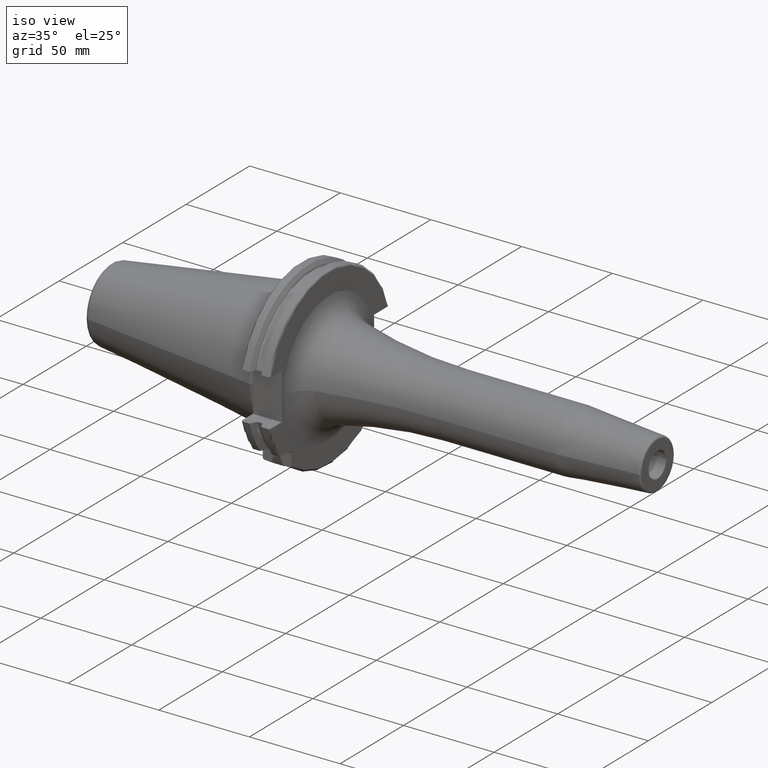
[diagram: clean part render]
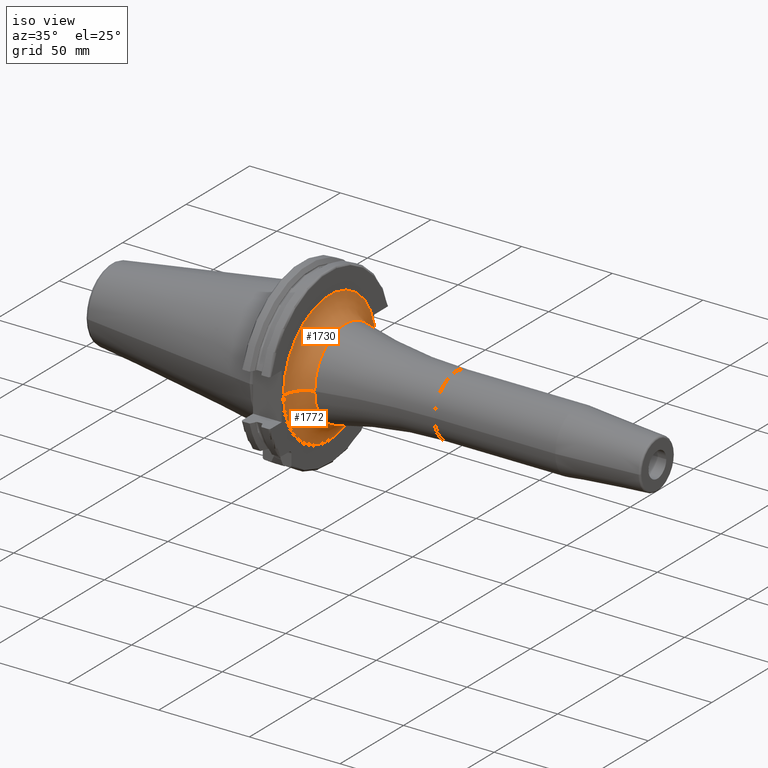
[diagram: same view with one multi-face feature highlighted, each face labeled with its STEP entity id]
A machine part, iso view. The highlighted faces form ONE feature: a constant-radius fillet chain: 2 tangent blend faces with common blend radius 12 mm. The faces share edges in the B-rep.
Their STEP definitions:
[1] entity #1772 (Torus):
#131=CARTESIAN_POINT('',(1.905E1,0.E0,0.E0));
#132=DIRECTION('',(1.E0,0.E0,0.E0));
#133=DIRECTION('',(0.E0,-1.E0,0.E0));
#134=AXIS2_PLACEMENT_3D('',#131,#132,#133);
#172=CARTESIAN_POINT('',(1.908197216969E1,3.53E1,-4.514151702614E-4));
#179=CARTESIAN_POINT('',(3.105E1,3.617539125699E1,-4.626096431729E-4));
#180=DIRECTION('',(0.E0,1.278796516253E-5,9.999999999182E-1));
#181=DIRECTION('',(-9.973356525258E-1,-7.294927141550E-2,9.328727415692E-7));
#182=AXIS2_PLACEMENT_3D('',#179,#180,#181);
#189=CARTESIAN_POINT('',(2.812563025210E1,0.E0,0.E0));
#190=DIRECTION('',(1.E0,0.E0,0.E0));
#191=DIRECTION('',(0.E0,-1.E0,0.E0));
#192=AXIS2_PLACEMENT_3D('',#189,#190,#191);
#204=CARTESIAN_POINT('',(3.105E1,-3.617539125994E1,7.554457059911E-12));
#205=DIRECTION('',(0.E0,-2.088277467616E-13,-1.E0));
#206=DIRECTION('',(-1.E0,2.664535259100E-14,0.E0));
#207=AXIS2_PLACEMENT_3D('',#204,#205,#206);
#209=CARTESIAN_POINT('',(1.905E1,3.529996364870E1,-7.909910270279E0));
#210=CARTESIAN_POINT('',(1.905E1,3.529996364870E1,-7.034961663883E0));
#211=CARTESIAN_POINT('',(1.905896638799E1,3.530001696394E1,-5.282665407885E0));
#212=CARTESIAN_POINT('',(1.907685348349E1,3.529999515316E1,-2.644428191918E0));
#213=CARTESIAN_POINT('',(1.908197134467E1,3.53E1,-8.824865478469E-1));
#214=CARTESIAN_POINT('',(1.908197216969E1,3.53E1,-4.514151702614E-4));
#1490=CARTESIAN_POINT('',(2.812563025210E1,2.453717569322E1,0.E0));
#1491=CARTESIAN_POINT('',(2.812563025210E1,-2.453717569322E1,0.E0));
#1492=VERTEX_POINT('',#1490);
#1493=VERTEX_POINT('',#1491);
#1495=CARTESIAN_POINT('',(1.905E1,-3.617539125994E1,1.323385845353E-13));
#1497=VERTEX_POINT('',#1495);
#1498=CARTESIAN_POINT('',(1.905E1,3.530019495966E1,-7.909182550669E0));
#1499=VERTEX_POINT('',#1498);
#1504=VERTEX_POINT('',#172);
#1760=CARTESIAN_POINT('',(3.105E1,0.E0,0.E0));
#1761=DIRECTION('',(1.E0,0.E0,0.E0));
#1762=DIRECTION('',(0.E0,-9.999689495269E-1,7.880354180208E-3));
#1763=AXIS2_PLACEMENT_3D('',#1760,#1761,#1762);
#1764=TOROIDAL_SURFACE('',#1763,3.617539125994E1,1.2E1);
#1765=ORIENTED_EDGE('',*,*,#1686,.F.);
#1766=ORIENTED_EDGE('',*,*,#1722,.T.);
#1767=ORIENTED_EDGE('',*,*,#1751,.T.);
#1768=ORIENTED_EDGE('',*,*,#1726,.F.);
#1769=ORIENTED_EDGE('',*,*,#1659,.F.);
#1770=EDGE_LOOP('',(#1765,#1766,#1767,#1768,#1769));
#1771=FACE_OUTER_BOUND('',#1770,.F.);
#1772=ADVANCED_FACE('',(#1771),#1764,.F.);
#135=CIRCLE('',#134,3.617539125994E1);
#183=CIRCLE('',#182,1.2E1);
#193=CIRCLE('',#192,2.453717569322E1);
#208=CIRCLE('',#207,1.2E1);
#215=B_SPLINE_CURVE_WITH_KNOTS('',3,(#209,#210,#211,#212,#213,#214),
.UNSPECIFIED.,.F.,.F.,(4,1,1,4),(0.E0,3.333333333333E-1,6.666666666667E-1,1.E0),
.UNSPECIFIED.);
#1659=EDGE_CURVE('',#1499,#1504,#215,.T.);
#1686=EDGE_CURVE('',#1497,#1499,#135,.T.);
#1722=EDGE_CURVE('',#1497,#1493,#208,.T.);
#1726=EDGE_CURVE('',#1504,#1492,#183,.T.);
#1751=EDGE_CURVE('',#1493,#1492,#193,.T.);
[2] entity #1730 (Torus):
#126=CARTESIAN_POINT('',(1.905E1,0.E0,0.E0));
#127=DIRECTION('',(1.E0,0.E0,0.E0));
#128=DIRECTION('',(0.E0,9.758055008668E-1,2.186403999222E-1));
#129=AXIS2_PLACEMENT_3D('',#126,#127,#128);
#172=CARTESIAN_POINT('',(1.908197216969E1,3.53E1,-4.514151702614E-4));
#173=CARTESIAN_POINT('',(1.908197299543E1,3.53E1,8.823437907642E-1));
#174=CARTESIAN_POINT('',(1.907684953268E1,3.529999490822E1,2.645378409302E0));
#175=CARTESIAN_POINT('',(1.905895630440E1,3.530001782125E1,5.283979442298E0));
#176=CARTESIAN_POINT('',(1.905E1,3.529996181161E1,7.035656091446E0));
#177=CARTESIAN_POINT('',(1.905E1,3.529996181161E1,7.909995294076E0));
#179=CARTESIAN_POINT('',(3.105E1,3.617539125699E1,-4.626096431729E-4));
#180=DIRECTION('',(0.E0,1.278796516253E-5,9.999999999182E-1));
#181=DIRECTION('',(-9.973356525258E-1,-7.294927141550E-2,9.328727415692E-7));
#182=AXIS2_PLACEMENT_3D('',#179,#180,#181);
#184=CARTESIAN_POINT('',(2.812563025210E1,0.E0,0.E0));
#185=DIRECTION('',(1.E0,0.E0,0.E0));
#186=DIRECTION('',(0.E0,1.E0,0.E0));
#187=AXIS2_PLACEMENT_3D('',#184,#185,#186);
#204=CARTESIAN_POINT('',(3.105E1,-3.617539125994E1,7.554457059911E-12));
#205=DIRECTION('',(0.E0,-2.088277467616E-13,-1.E0));
#206=DIRECTION('',(-1.E0,2.664535259100E-14,0.E0));
#207=AXIS2_PLACEMENT_3D('',#204,#205,#206);
#1490=CARTESIAN_POINT('',(2.812563025210E1,2.453717569322E1,0.E0));
#1491=CARTESIAN_POINT('',(2.812563025210E1,-2.453717569322E1,0.E0));
#1492=VERTEX_POINT('',#1490);
#1493=VERTEX_POINT('',#1491);
#1494=CARTESIAN_POINT('',(1.905E1,3.530014578746E1,7.909402012415E0));
#1495=CARTESIAN_POINT('',(1.905E1,-3.617539125994E1,1.323385845353E-13));
#1496=VERTEX_POINT('',#1494);
#1497=VERTEX_POINT('',#1495);
#1504=VERTEX_POINT('',#172);
#1715=CARTESIAN_POINT('',(3.105E1,0.E0,0.E0));
#1716=DIRECTION('',(1.E0,0.E0,0.E0));
#1717=DIRECTION('',(0.E0,1.485959642861E-3,-9.999988959614E-1));
#1718=AXIS2_PLACEMENT_3D('',#1715,#1716,#1717);
#1719=TOROIDAL_SURFACE('',#1718,3.617539125994E1,1.2E1);
#1721=ORIENTED_EDGE('',*,*,#1720,.T.);
#1723=ORIENTED_EDGE('',*,*,#1722,.F.);
#1724=ORIENTED_EDGE('',*,*,#1684,.F.);
#1725=ORIENTED_EDGE('',*,*,#1661,.F.);
#1727=ORIENTED_EDGE('',*,*,#1726,.T.);
#1728=EDGE_LOOP('',(#1721,#1723,#1724,#1725,#1727));
#1729=FACE_OUTER_BOUND('',#1728,.F.);
#1730=ADVANCED_FACE('',(#1729),#1719,.F.);
#130=CIRCLE('',#129,3.617539125994E1);
#178=B_SPLINE_CURVE_WITH_KNOTS('',3,(#172,#173,#174,#175,#176,#177),
.UNSPECIFIED.,.F.,.F.,(4,1,1,4),(0.E0,3.333333333333E-1,6.666666666667E-1,1.E0),
.UNSPECIFIED.);
#183=CIRCLE('',#182,1.2E1);
#188=CIRCLE('',#187,2.453717569322E1);
#208=CIRCLE('',#207,1.2E1);
#1661=EDGE_CURVE('',#1504,#1496,#178,.T.);
#1684=EDGE_CURVE('',#1496,#1497,#130,.T.);
#1720=EDGE_CURVE('',#1492,#1493,#188,.T.);
#1722=EDGE_CURVE('',#1497,#1493,#208,.T.);
#1726=EDGE_CURVE('',#1504,#1492,#183,.T.);